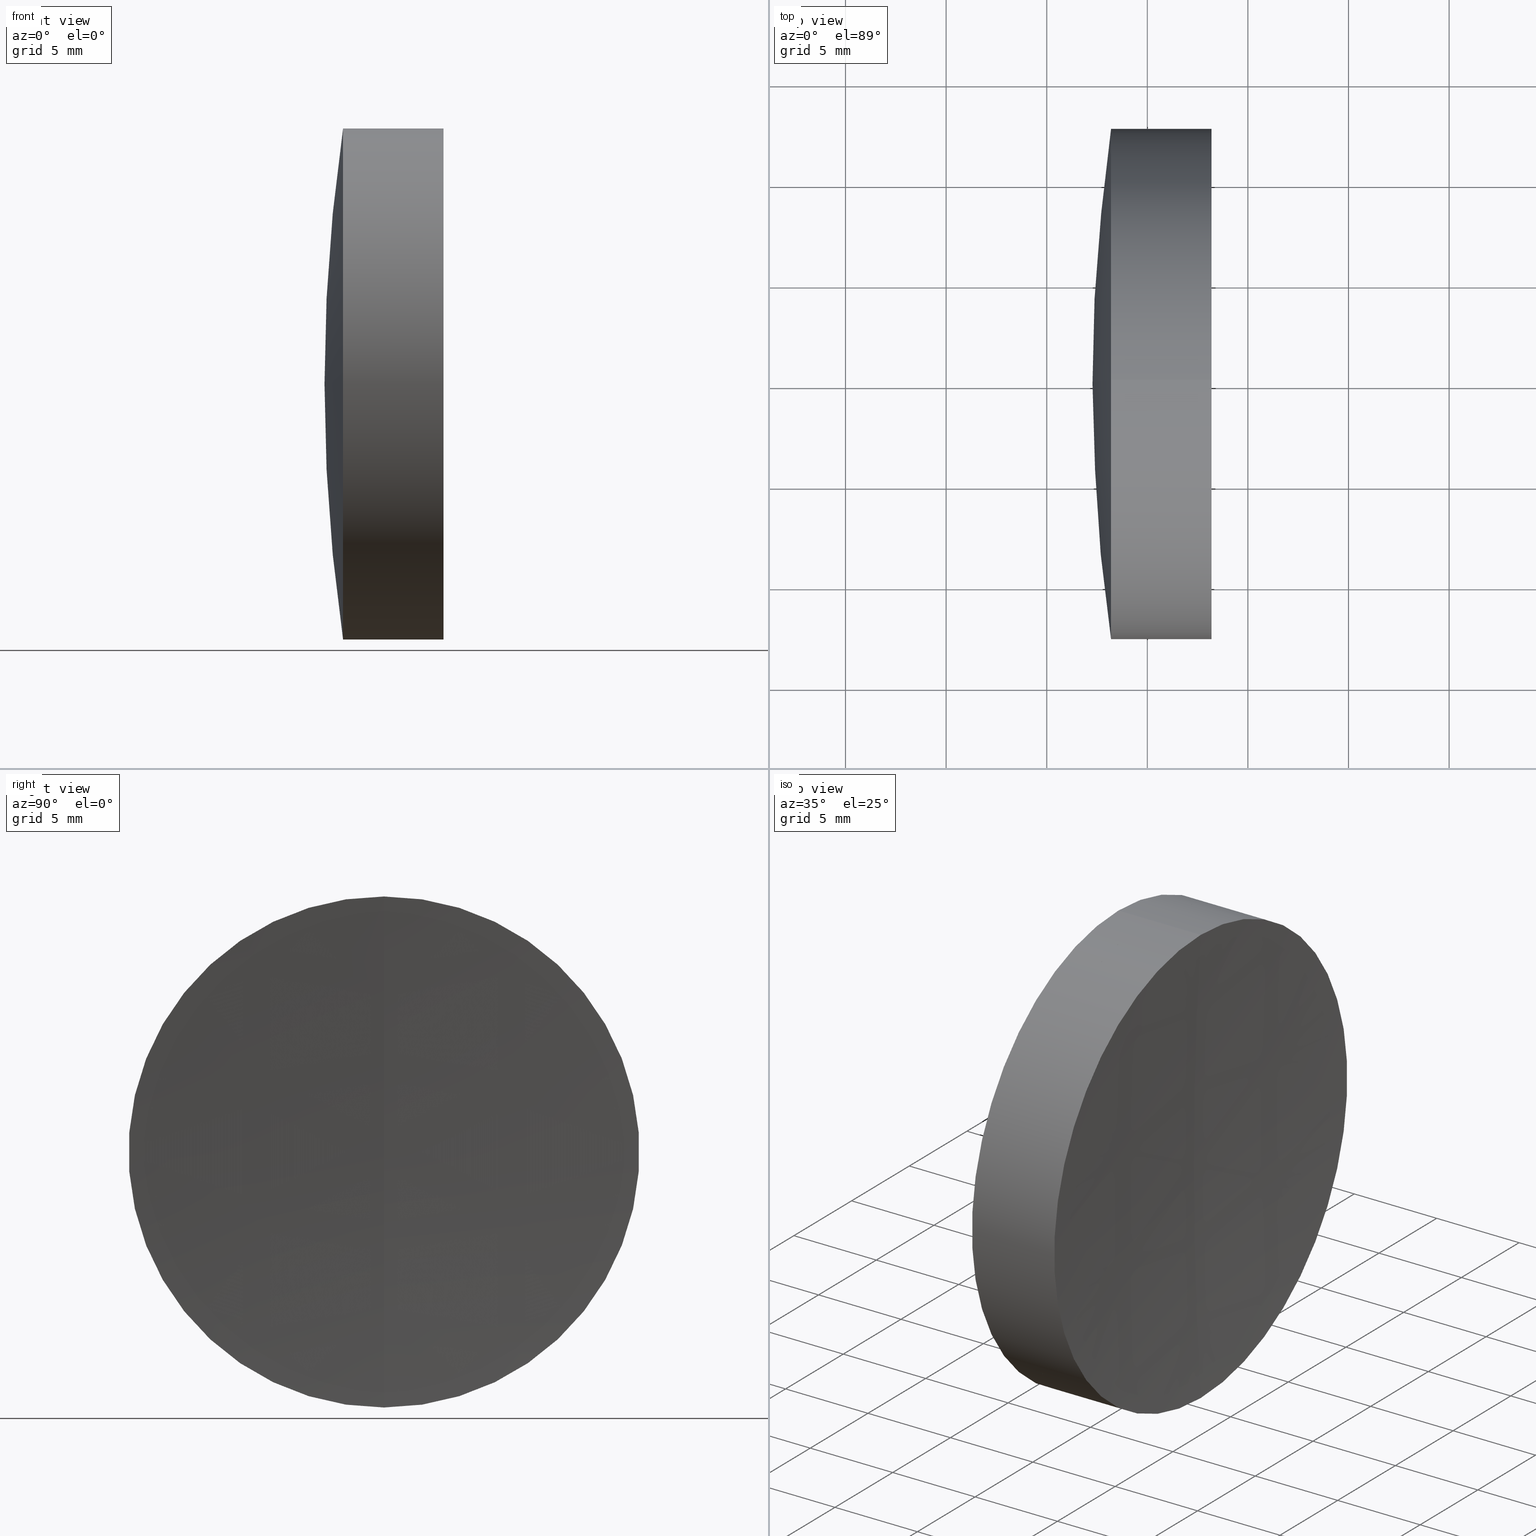
[diagram: canonical four-view strip — front | top / right | iso, engineering-drawing reading convention]
A machine part, canonical four-view strip (front | top / right | iso — engineering-drawing reading convention). The complete STEP part file that produces these views, byte-faithful:
ISO-10303-21;
HEADER;
FILE_DESCRIPTION (( 'STEP AP214' ),
    '1' );
FILE_NAME ('145172.STEP',
    '2019-06-12T01:52:43',
    ( 'user' ),
    ( '΢���й�' ),
    'SwSTEP 2.0',
    'SolidWorks 2016',
    '' );
FILE_SCHEMA (( 'AUTOMOTIVE_DESIGN' ));
ENDSEC;

DATA;
#1 = MECHANICAL_DESIGN_GEOMETRIC_PRESENTATION_REPRESENTATION (  '', ( #105 ), #300 ) ;
#2 = VERTEX_POINT ( 'NONE', #332 ) ;
#3 = DIRECTION ( 'NONE',  ( 0.0000000000000000000, 0.0000000000000000000, 1.000000000000000000 ) ) ;
#4 = VERTEX_POINT ( 'NONE', #94 ) ;
#5 = DIRECTION ( 'NONE',  ( 0.0000000000000000000, 1.000000000000000000, 0.0000000000000000000 ) ) ;
#6 = APPLICATION_CONTEXT ( 'automotive_design' ) ;
#7 = CARTESIAN_POINT ( 'NONE',  ( -0.5519199926577972300, 1.555301434917150900E-015, -12.70000000000010100 ) ) ;
#8 = DIRECTION ( 'NONE',  ( 0.0000000000000000000, 0.0000000000000000000, 1.000000000000000000 ) ) ;
#9 = PRESENTATION_LAYER_ASSIGNMENT (  '', '', ( #282 ) ) ;
#10 = ORIENTED_EDGE ( 'NONE', *, *, #198, .T. ) ;
#11 = UNCERTAINTY_MEASURE_WITH_UNIT (LENGTH_MEASURE( 1.000000000000000100E-005 ), #154, 'distance_accuracy_value', 'NONE');
#12 = ADVANCED_FACE ( 'NONE', ( #193 ), #110, .T. ) ;
#13 = EDGE_LOOP ( 'NONE', ( #24, #138, #259, #236 ) ) ;
#14 = DIRECTION ( 'NONE',  ( -1.000000000000000000, -0.0000000000000000000, -0.0000000000000000000 ) ) ;
#15 =( LENGTH_UNIT ( ) NAMED_UNIT ( * ) SI_UNIT ( .MILLI., .METRE. ) );
#16 = DIRECTION ( 'NONE',  ( -0.0000000000000000000, 1.000000000000000000, 1.224646799147353200E-016 ) ) ;
#17 = EDGE_CURVE ( 'NONE', #218, #347, #48, .T. ) ;
#18 = SURFACE_SIDE_STYLE ('',( #346 ) ) ;
#19 = CARTESIAN_POINT ( 'NONE',  ( 95.07472966492228700, 0.0000000000000000000, 0.0000000000000000000 ) ) ;
#20 = CIRCLE ( 'NONE', #60, 87.90000000000000600 ) ;
#21 = VERTEX_POINT ( 'NONE', #227 ) ;
#22 = FACE_OUTER_BOUND ( 'NONE', #13, .T. ) ;
#23 = SURFACE_SIDE_STYLE ('',( #50 ) ) ;
#24 = ORIENTED_EDGE ( 'NONE', *, *, #198, .F. ) ;
#25 = AXIS2_PLACEMENT_3D ( 'NONE', #182, #16, #207 ) ;
#26 = PRODUCT ( '145172', '145172', '', ( #190 ) ) ;
#27 = FACE_OUTER_BOUND ( 'NONE', #309, .T. ) ;
#28 = ORIENTED_EDGE ( 'NONE', *, *, #108, .F. ) ;
#29 = DIRECTION ( 'NONE',  ( -1.000000000000000000, -0.0000000000000000000, -0.0000000000000000000 ) ) ;
#30 = COLOUR_RGB ( '',1.000000000000000000, 1.000000000000000000, 1.000000000000000000 ) ;
#31 = CARTESIAN_POINT ( 'NONE',  ( -0.8160621761658039000, 0.0000000000000000000, 12.70000000000001700 ) ) ;
#32 =( GEOMETRIC_REPRESENTATION_CONTEXT ( 3 ) GLOBAL_UNCERTAINTY_ASSIGNED_CONTEXT ( ( #11 ) ) GLOBAL_UNIT_ASSIGNED_CONTEXT ( ( #154, #278, #316 ) ) REPRESENTATION_CONTEXT ( 'NONE', 'WORKASPACE' ) );
#33 = FACE_OUTER_BOUND ( 'NONE', #295, .T. ) ;
#34 = DIRECTION ( 'NONE',  ( 0.0000000000000000000, 0.0000000000000000000, -1.000000000000000000 ) ) ;
#35 = CARTESIAN_POINT ( 'NONE',  ( -0.5519199926577972300, 0.0000000000000000000, 12.70000000000010100 ) ) ;
#36 = ADVANCED_FACE ( 'NONE', ( #335 ), #271, .F. ) ;
#37 = COLOUR_RGB ( '',1.000000000000000000, 1.000000000000000000, 1.000000000000000000 ) ;
#38 = ORIENTED_EDGE ( 'NONE', *, *, #329, .T. ) ;
#39 = CARTESIAN_POINT ( 'NONE',  ( 95.07472966492228700, 0.0000000000000000000, 0.0000000000000000000 ) ) ;
#40 = PRESENTATION_LAYER_ASSIGNMENT (  '', '', ( #101 ) ) ;
#41 = DIRECTION ( 'NONE',  ( 0.0000000000000000000, 1.000000000000000000, -0.0000000000000000000 ) ) ;
#42 = FACE_OUTER_BOUND ( 'NONE', #82, .T. ) ;
#43 =( NAMED_UNIT ( * ) SI_UNIT ( $, .STERADIAN. ) SOLID_ANGLE_UNIT ( ) );
#44 = CARTESIAN_POINT ( 'NONE',  ( 93.19768497055619600, 0.0000000000000000000, 0.0000000000000000000 ) ) ;
#45 = DIRECTION ( 'NONE',  ( 0.0000000000000000000, 1.000000000000000000, 0.0000000000000000000 ) ) ;
#46 = AXIS2_PLACEMENT_3D ( 'NONE', #39, #199, #71 ) ;
#47 = SPHERICAL_SURFACE ( 'NONE', #127, 87.90000000000000600 ) ;
#48 = LINE ( 'NONE', #31, #58 ) ;
#49 = DIRECTION ( 'NONE',  ( 0.0000000000000000000, -1.000000000000000000, -1.224646799147353200E-016 ) ) ;
#50 = SURFACE_STYLE_FILL_AREA ( #215 ) ;
#51 = EDGE_LOOP ( 'NONE', ( #103, #200, #240 ) ) ;
#52 =( NAMED_UNIT ( * ) SI_UNIT ( $, .STERADIAN. ) SOLID_ANGLE_UNIT ( ) );
#53 = CIRCLE ( 'NONE', #279, 194.5399999999999900 ) ;
#54 = UNCERTAINTY_MEASURE_WITH_UNIT (LENGTH_MEASURE( 1.000000000000000100E-005 ), #15, 'distance_accuracy_value', 'NONE');
#55 = APPLICATION_CONTEXT ( 'automotive_design' ) ;
#56 = EDGE_CURVE ( 'NONE', #347, #135, #78, .T. ) ;
#57 =( NAMED_UNIT ( * ) PLANE_ANGLE_UNIT ( ) SI_UNIT ( $, .RADIAN. ) );
#58 = VECTOR ( 'NONE', #223, 1000.000000000000000 ) ;
#59 = VERTEX_POINT ( 'NONE', #258 ) ;
#60 = AXIS2_PLACEMENT_3D ( 'NONE', #292, #129, #314 ) ;
#61 = DIRECTION ( 'NONE',  ( 0.0000000000000000000, 0.0000000000000000000, 1.000000000000000000 ) ) ;
#62 =( NAMED_UNIT ( * ) SI_UNIT ( $, .STERADIAN. ) SOLID_ANGLE_UNIT ( ) );
#63 = CIRCLE ( 'NONE', #77, 12.70000000000010100 ) ;
#64 = ORIENTED_EDGE ( 'NONE', *, *, #241, .T. ) ;
#65 = CARTESIAN_POINT ( 'NONE',  ( 292.3153832615549300, 0.0000000000000000000, 0.0000000000000000000 ) ) ;
#66 = CARTESIAN_POINT ( 'NONE',  ( -19.67461673844508900, 0.0000000000000000000, -4.590090452819805700E-014 ) ) ;
#67 = ADVANCED_FACE ( 'NONE', ( #239 ), #132, .T. ) ;
#68 = AXIS2_PLACEMENT_3D ( 'NONE', #283, #116, #284 ) ;
#69 = ORIENTED_EDGE ( 'NONE', *, *, #108, .T. ) ;
#70 = CARTESIAN_POINT ( 'NONE',  ( -19.67461673844508900, 0.0000000000000000000, -4.590090452819805700E-014 ) ) ;
#71 = DIRECTION ( 'NONE',  ( 0.0000000000000000000, 0.0000000000000000000, 1.000000000000000000 ) ) ;
#72 = ORIENTED_EDGE ( 'NONE', *, *, #161, .F. ) ;
#73 = AXIS2_PLACEMENT_3D ( 'NONE', #115, #79, #155 ) ;
#74 = DIRECTION ( 'NONE',  ( 0.0000000000000000000, 0.0000000000000000000, 1.000000000000000000 ) ) ;
#75 = VERTEX_POINT ( 'NONE', #224 ) ;
#76 = APPLICATION_PROTOCOL_DEFINITION ( 'draft international standard', 'automotive_design', 1998, #6 ) ;
#77 = AXIS2_PLACEMENT_3D ( 'NONE', #177, #14, #204 ) ;
#78 = CIRCLE ( 'NONE', #265, 12.70000000000001700 ) ;
#79 = DIRECTION ( 'NONE',  ( 0.0000000000000000000, -1.000000000000000000, 0.0000000000000000000 ) ) ;
#80 = LINE ( 'NONE', #7, #158 ) ;
#81 = AXIS2_PLACEMENT_3D ( 'NONE', #289, #124, #310 ) ;
#82 = EDGE_LOOP ( 'NONE', ( #133, #280, #244 ) ) ;
#83 = PRESENTATION_STYLE_ASSIGNMENT (( #162 ) ) ;
#84 = EDGE_LOOP ( 'NONE', ( #152, #220, #187 ) ) ;
#85 = DIRECTION ( 'NONE',  ( -1.000000000000000000, -0.0000000000000000000, -0.0000000000000000000 ) ) ;
#86 = DIRECTION ( 'NONE',  ( 0.0000000000000000000, 0.0000000000000000000, 1.000000000000000000 ) ) ;
#87 = PRESENTATION_STYLE_ASSIGNMENT (( #112 ) ) ;
#88 = AXIS2_PLACEMENT_3D ( 'NONE', #157, #324, #191 ) ;
#89 = CARTESIAN_POINT ( 'NONE',  ( 98.19036787198696500, -1.555301434917148100E-015, 12.70000000000007900 ) ) ;
#90 = DIRECTION ( 'NONE',  ( -1.000000000000000000, -0.0000000000000000000, -0.0000000000000000000 ) ) ;
#91 = SPHERICAL_SURFACE ( 'NONE', #216, 194.5399999999999900 ) ;
#92 = DIRECTION ( 'NONE',  ( 0.0000000000000000000, -1.224646799147353200E-016, 1.000000000000000000 ) ) ;
#93 = EDGE_CURVE ( 'NONE', #296, #59, #119, .T. ) ;
#94 = CARTESIAN_POINT ( 'NONE',  ( 95.07472966492230200, 0.0000000000000000000, 12.70000000000002100 ) ) ;
#95 = ORIENTED_EDGE ( 'NONE', *, *, #333, .F. ) ;
#96 = CARTESIAN_POINT ( 'NONE',  ( -19.67461673844508900, 0.0000000000000000000, -4.590090452819805700E-014 ) ) ;
#97 = ORIENTED_EDGE ( 'NONE', *, *, #161, .T. ) ;
#98 = AXIS2_PLACEMENT_3D ( 'NONE', #66, #255, #92 ) ;
#99 = PRODUCT_DEFINITION_SHAPE ( 'NONE', 'NONE',  #179 ) ;
#100 = ADVANCED_BREP_SHAPE_REPRESENTATION ( '145172', ( #293, #210, #88 ), #111 ) ;
#101 = STYLED_ITEM ( 'NONE', ( #83 ), #293 ) ;
#102 = SURFACE_STYLE_FILL_AREA ( #146 ) ;
#103 = ORIENTED_EDGE ( 'NONE', *, *, #231, .T. ) ;
#104 =( LENGTH_UNIT ( ) NAMED_UNIT ( * ) SI_UNIT ( .MILLI., .METRE. ) );
#105 = STYLED_ITEM ( 'NONE', ( #144 ), #210 ) ;
#106 = CYLINDRICAL_SURFACE ( 'NONE', #134, 12.70000000000001700 ) ;
#107 = APPLICATION_PROTOCOL_DEFINITION ( 'draft international standard', 'automotive_design', 1998, #55 ) ;
#108 = EDGE_CURVE ( 'NONE', #2, #197, #80, .T. ) ;
#109 = CYLINDRICAL_SURFACE ( 'NONE', #222, 12.70000000000010100 ) ;
#110 = SPHERICAL_SURFACE ( 'NONE', #294, 87.90000000000000600 ) ;
#111 =( GEOMETRIC_REPRESENTATION_CONTEXT ( 3 ) GLOBAL_UNCERTAINTY_ASSIGNED_CONTEXT ( ( #173 ) ) GLOBAL_UNIT_ASSIGNED_CONTEXT ( ( #211, #136, #52 ) ) REPRESENTATION_CONTEXT ( 'NONE', 'WORKASPACE' ) );
#112 = SURFACE_STYLE_USAGE ( .BOTH. , #23 ) ;
#113 = DIRECTION ( 'NONE',  ( -1.000000000000000000, -0.0000000000000000000, -0.0000000000000000000 ) ) ;
#114 = CIRCLE ( 'NONE', #81, 12.70000000000010100 ) ;
#115 = CARTESIAN_POINT ( 'NONE',  ( -19.67461673844508900, 0.0000000000000000000, -4.590090452819805700E-014 ) ) ;
#116 = DIRECTION ( 'NONE',  ( 0.0000000000000000000, -1.000000000000000000, -1.224646799147353200E-016 ) ) ;
#117 = CIRCLE ( 'NONE', #272, 12.70000000000001900 ) ;
#118 = AXIS2_PLACEMENT_3D ( 'NONE', #149, #341, #181 ) ;
#119 = CIRCLE ( 'NONE', #98, 115.4500000000000200 ) ;
#120 = ADVANCED_FACE ( 'NONE', ( #42 ), #91, .F. ) ;
#121 = DIRECTION ( 'NONE',  ( 0.0000000000000000000, 0.0000000000000000000, -1.000000000000000000 ) ) ;
#122 = SHAPE_DEFINITION_REPRESENTATION ( #99, #100 ) ;
#123 = ORIENTED_EDGE ( 'NONE', *, *, #184, .T. ) ;
#124 = DIRECTION ( 'NONE',  ( -1.000000000000000000, -0.0000000000000000000, -0.0000000000000000000 ) ) ;
#125 = COLOUR_RGB ( '',1.000000000000000000, 1.000000000000000000, 1.000000000000000000 ) ;
#126 = FACE_OUTER_BOUND ( 'NONE', #160, .T. ) ;
#127 = AXIS2_PLACEMENT_3D ( 'NONE', #183, #343, #242 ) ;
#128 = ORIENTED_EDGE ( 'NONE', *, *, #225, .F. ) ;
#129 = DIRECTION ( 'NONE',  ( 0.0000000000000000000, 1.000000000000000000, -0.0000000000000000000 ) ) ;
#130 = UNCERTAINTY_MEASURE_WITH_UNIT (LENGTH_MEASURE( 1.000000000000000100E-005 ), #104, 'distance_accuracy_value', 'NONE');
#131 = EDGE_CURVE ( 'NONE', #174, #4, #317, .T. ) ;
#132 = SPHERICAL_SURFACE ( 'NONE', #166, 115.4500000000000200 ) ;
#133 = ORIENTED_EDGE ( 'NONE', *, *, #322, .F. ) ;
#134 = AXIS2_PLACEMENT_3D ( 'NONE', #305, #168, #139 ) ;
#135 = VERTEX_POINT ( 'NONE', #307 ) ;
#136 =( NAMED_UNIT ( * ) PLANE_ANGLE_UNIT ( ) SI_UNIT ( $, .RADIAN. ) );
#137 = FACE_OUTER_BOUND ( 'NONE', #176, .T. ) ;
#138 = ORIENTED_EDGE ( 'NONE', *, *, #269, .T. ) ;
#139 = DIRECTION ( 'NONE',  ( 0.0000000000000000000, 0.0000000000000000000, 1.000000000000000000 ) ) ;
#140 = AXIS2_PLACEMENT_3D ( 'NONE', #213, #328, #345 ) ;
#141 = CARTESIAN_POINT ( 'NONE',  ( -0.5519199926577972300, 0.0000000000000000000, 0.0000000000000000000 ) ) ;
#142 = CLOSED_SHELL ( 'NONE', ( #260, #196, #287, #12, #170, #67 ) ) ;
#143 = ADVANCED_FACE ( 'NONE', ( #323 ), #299, .T. ) ;
#144 = PRESENTATION_STYLE_ASSIGNMENT (( #178 ) ) ;
#145 = ORIENTED_EDGE ( 'NONE', *, *, #93, .F. ) ;
#146 = FILL_AREA_STYLE ('',( #312 ) ) ;
#147 = CIRCLE ( 'NONE', #73, 115.4500000000000200 ) ;
#148 = ORIENTED_EDGE ( 'NONE', *, *, #217, .F. ) ;
#149 = CARTESIAN_POINT ( 'NONE',  ( 95.07472966492230200, 0.0000000000000000000, 0.0000000000000000000 ) ) ;
#150 = VECTOR ( 'NONE', #90, 1000.000000000000000 ) ;
#151 = CARTESIAN_POINT ( 'NONE',  ( -0.5519199926577972300, 0.0000000000000000000, 0.0000000000000000000 ) ) ;
#152 = ORIENTED_EDGE ( 'NONE', *, *, #245, .F. ) ;
#153 = CLOSED_SHELL ( 'NONE', ( #254, #306, #171, #36, #120, #143 ) ) ;
#154 =( LENGTH_UNIT ( ) NAMED_UNIT ( * ) SI_UNIT ( .MILLI., .METRE. ) );
#155 = DIRECTION ( 'NONE',  ( 0.0000000000000000000, 0.0000000000000000000, -1.000000000000000000 ) ) ;
#156 = ORIENTED_EDGE ( 'NONE', *, *, #322, .T. ) ;
#157 = CARTESIAN_POINT ( 'NONE',  ( 0.0000000000000000000, 0.0000000000000000000, 0.0000000000000000000 ) ) ;
#158 = VECTOR ( 'NONE', #29, 1000.000000000000000 ) ;
#159 = DIRECTION ( 'NONE',  ( 0.0000000000000000000, 1.224646799147353200E-016, -1.000000000000000000 ) ) ;
#160 = EDGE_LOOP ( 'NONE', ( #327, #298, #246 ) ) ;
#161 = EDGE_CURVE ( 'NONE', #174, #2, #251, .T. ) ;
#162 = SURFACE_STYLE_USAGE ( .BOTH. , #18 ) ;
#163 = VECTOR ( 'NONE', #291, 1000.000000000000000 ) ;
#164 = ORIENTED_EDGE ( 'NONE', *, *, #56, .T. ) ;
#165 = EDGE_CURVE ( 'NONE', #347, #263, #313, .T. ) ;
#166 = AXIS2_PLACEMENT_3D ( 'NONE', #303, #281, #219 ) ;
#167 = CIRCLE ( 'NONE', #195, 194.5399999999999900 ) ;
#168 = DIRECTION ( 'NONE',  ( -1.000000000000000000, -0.0000000000000000000, -0.0000000000000000000 ) ) ;
#169 = ORIENTED_EDGE ( 'NONE', *, *, #17, .F. ) ;
#170 = ADVANCED_FACE ( 'NONE', ( #22 ), #106, .T. ) ;
#171 = ADVANCED_FACE ( 'NONE', ( #27 ), #180, .F. ) ;
#172 = CIRCLE ( 'NONE', #256, 12.70000000000001700 ) ;
#173 = UNCERTAINTY_MEASURE_WITH_UNIT (LENGTH_MEASURE( 1.000000000000000100E-005 ), #211, 'distance_accuracy_value', 'NONE');
#174 = VERTEX_POINT ( 'NONE', #89 ) ;
#175 = DIRECTION ( 'NONE',  ( 0.0000000000000000000, 0.0000000000000000000, 1.000000000000000000 ) ) ;
#176 = EDGE_LOOP ( 'NONE', ( #72, #156, #148 ) ) ;
#177 = CARTESIAN_POINT ( 'NONE',  ( 98.19036787198697900, 0.0000000000000000000, 0.0000000000000000000 ) ) ;
#178 = SURFACE_STYLE_USAGE ( .BOTH. , #340 ) ;
#179 = PRODUCT_DEFINITION ( 'δ֪', '', #252, #257 ) ;
#180 = SPHERICAL_SURFACE ( 'NONE', #336, 115.4500000000000300 ) ;
#181 = DIRECTION ( 'NONE',  ( 0.0000000000000000000, 0.0000000000000000000, 1.000000000000000000 ) ) ;
#182 = CARTESIAN_POINT ( 'NONE',  ( -19.67461673844508900, 0.0000000000000000000, -4.590090452819805700E-014 ) ) ;
#183 = CARTESIAN_POINT ( 'NONE',  ( 180.1753832615549100, 0.0000000000000000000, 6.432216733435462300E-014 ) ) ;
#184 = EDGE_CURVE ( 'NONE', #218, #59, #275, .T. ) ;
#185 = DIRECTION ( 'NONE',  ( 0.0000000000000000000, 0.0000000000000000000, -1.000000000000000000 ) ) ;
#186 = FACE_OUTER_BOUND ( 'NONE', #337, .T. ) ;
#187 = ORIENTED_EDGE ( 'NONE', *, *, #225, .T. ) ;
#188 = EDGE_CURVE ( 'NONE', #197, #4, #114, .T. ) ;
#189 = AXIS2_PLACEMENT_3D ( 'NONE', #249, #113, #86 ) ;
#190 = PRODUCT_CONTEXT ( 'NONE', #55, 'mechanical' ) ;
#191 = DIRECTION ( 'NONE',  ( 1.000000000000000000, 0.0000000000000000000, 0.0000000000000000000 ) ) ;
#192 = EDGE_CURVE ( 'NONE', #2, #174, #63, .T. ) ;
#193 = FACE_OUTER_BOUND ( 'NONE', #247, .T. ) ;
#194 = CIRCLE ( 'NONE', #118, 12.70000000000010100 ) ;
#195 = AXIS2_PLACEMENT_3D ( 'NONE', #237, #49, #159 ) ;
#196 = ADVANCED_FACE ( 'NONE', ( #33 ), #203, .T. ) ;
#197 = VERTEX_POINT ( 'NONE', #230 ) ;
#198 = EDGE_CURVE ( 'NONE', #59, #135, #266, .T. ) ;
#199 = DIRECTION ( 'NONE',  ( -1.000000000000000000, -0.0000000000000000000, -0.0000000000000000000 ) ) ;
#200 = ORIENTED_EDGE ( 'NONE', *, *, #165, .T. ) ;
#201 = FILL_AREA_STYLE_COLOUR ( '', #30 ) ;
#202 = CARTESIAN_POINT ( 'NONE',  ( 292.3153832615549300, 0.0000000000000000000, 0.0000000000000000000 ) ) ;
#203 = CYLINDRICAL_SURFACE ( 'NONE', #319, 12.70000000000001700 ) ;
#204 = DIRECTION ( 'NONE',  ( 0.0000000000000000000, 0.0000000000000000000, 1.000000000000000000 ) ) ;
#205 =( NAMED_UNIT ( * ) PLANE_ANGLE_UNIT ( ) SI_UNIT ( $, .RADIAN. ) );
#206 = DIRECTION ( 'NONE',  ( 0.0000000000000000000, 0.0000000000000000000, 1.000000000000000000 ) ) ;
#207 = DIRECTION ( 'NONE',  ( 0.0000000000000000000, -1.224646799147353200E-016, 1.000000000000000000 ) ) ;
#208 = DIRECTION ( 'NONE',  ( -1.000000000000000000, -0.0000000000000000000, -0.0000000000000000000 ) ) ;
#209 = ORIENTED_EDGE ( 'NONE', *, *, #188, .T. ) ;
#210 = MANIFOLD_SOLID_BREP ( '��ת2', #153 ) ;
#211 =( LENGTH_UNIT ( ) NAMED_UNIT ( * ) SI_UNIT ( .MILLI., .METRE. ) );
#212 = ORIENTED_EDGE ( 'NONE', *, *, #188, .F. ) ;
#213 = CARTESIAN_POINT ( 'NONE',  ( 292.3153832615549300, 0.0000000000000000000, 0.0000000000000000000 ) ) ;
#214 = MECHANICAL_DESIGN_GEOMETRIC_PRESENTATION_REPRESENTATION (  '', ( #282 ), #32 ) ;
#215 = FILL_AREA_STYLE ('',( #201 ) ) ;
#216 = AXIS2_PLACEMENT_3D ( 'NONE', #65, #250, #34 ) ;
#217 = EDGE_CURVE ( 'NONE', #2, #21, #53, .T. ) ;
#218 = VERTEX_POINT ( 'NONE', #267 ) ;
#219 = DIRECTION ( 'NONE',  ( 0.0000000000000000000, 0.0000000000000000000, 1.000000000000000000 ) ) ;
#220 = ORIENTED_EDGE ( 'NONE', *, *, #333, .T. ) ;
#221 = CIRCLE ( 'NONE', #25, 115.4500000000000300 ) ;
#222 = AXIS2_PLACEMENT_3D ( 'NONE', #151, #268, #342 ) ;
#223 = DIRECTION ( 'NONE',  ( -1.000000000000000000, -0.0000000000000000000, -0.0000000000000000000 ) ) ;
#224 = CARTESIAN_POINT ( 'NONE',  ( 95.77538326155493600, 0.0000000000000000000, -3.883163088011996400E-014 ) ) ;
#225 = EDGE_CURVE ( 'NONE', #4, #197, #194, .T. ) ;
#226 = DIRECTION ( 'NONE',  ( -1.000000000000000000, -0.0000000000000000000, -0.0000000000000000000 ) ) ;
#227 = CARTESIAN_POINT ( 'NONE',  ( 97.77538326155493600, 0.0000000000000000000, -1.191213941530630400E-014 ) ) ;
#228 = ORIENTED_EDGE ( 'NONE', *, *, #245, .T. ) ;
#229 = DIRECTION ( 'NONE',  ( 0.0000000000000000000, 0.0000000000000000000, 1.000000000000000000 ) ) ;
#230 = CARTESIAN_POINT ( 'NONE',  ( 95.07472966492230200, 1.555301434917141200E-015, -12.70000000000006500 ) ) ;
#231 = EDGE_CURVE ( 'NONE', #135, #347, #172, .T. ) ;
#232 = MECHANICAL_DESIGN_GEOMETRIC_PRESENTATION_REPRESENTATION (  '', ( #101 ), #297 ) ;
#233 = DIRECTION ( 'NONE',  ( -1.000000000000000000, -0.0000000000000000000, -0.0000000000000000000 ) ) ;
#234 = CARTESIAN_POINT ( 'NONE',  ( 92.27538326155490700, 0.0000000000000000000, 5.893984465210199900E-014 ) ) ;
#235 = AXIS2_PLACEMENT_3D ( 'NONE', #141, #253, #286 ) ;
#236 = ORIENTED_EDGE ( 'NONE', *, *, #231, .F. ) ;
#237 = CARTESIAN_POINT ( 'NONE',  ( 292.3153832615549300, 0.0000000000000000000, 0.0000000000000000000 ) ) ;
#238 = FILL_AREA_STYLE_COLOUR ( '', #37 ) ;
#239 = FACE_OUTER_BOUND ( 'NONE', #285, .T. ) ;
#240 = ORIENTED_EDGE ( 'NONE', *, *, #241, .F. ) ;
#241 = EDGE_CURVE ( 'NONE', #135, #263, #20, .T. ) ;
#242 = DIRECTION ( 'NONE',  ( 0.0000000000000000000, 0.0000000000000000000, -1.000000000000000000 ) ) ;
#243 = PRODUCT_RELATED_PRODUCT_CATEGORY ( 'part', '', ( #26 ) ) ;
#244 = ORIENTED_EDGE ( 'NONE', *, *, #217, .T. ) ;
#245 = EDGE_CURVE ( 'NONE', #75, #197, #221, .T. ) ;
#246 = ORIENTED_EDGE ( 'NONE', *, *, #184, .F. ) ;
#247 = EDGE_LOOP ( 'NONE', ( #290, #164, #64 ) ) ;
#248 = CARTESIAN_POINT ( 'NONE',  ( 93.19768497055619600, 0.0000000000000000000, 0.0000000000000000000 ) ) ;
#249 = CARTESIAN_POINT ( 'NONE',  ( 98.19036787198697900, 0.0000000000000000000, 0.0000000000000000000 ) ) ;
#250 = DIRECTION ( 'NONE',  ( -0.0000000000000000000, -1.000000000000000000, -0.0000000000000000000 ) ) ;
#251 = CIRCLE ( 'NONE', #189, 12.70000000000010100 ) ;
#252 = PRODUCT_DEFINITION_FORMATION_WITH_SPECIFIED_SOURCE ( '�κ�', '', #26, .NOT_KNOWN. ) ;
#253 = DIRECTION ( 'NONE',  ( -1.000000000000000000, -0.0000000000000000000, -0.0000000000000000000 ) ) ;
#254 = ADVANCED_FACE ( 'NONE', ( #186 ), #109, .T. ) ;
#255 = DIRECTION ( 'NONE',  ( -0.0000000000000000000, 1.000000000000000000, 1.224646799147353200E-016 ) ) ;
#256 = AXIS2_PLACEMENT_3D ( 'NONE', #44, #233, #74 ) ;
#257 = PRODUCT_DEFINITION_CONTEXT ( 'detailed design', #6, 'design' ) ;
#258 = CARTESIAN_POINT ( 'NONE',  ( 95.07472966492228700, 1.555301434917141000E-015, -12.70000000000002100 ) ) ;
#259 = ORIENTED_EDGE ( 'NONE', *, *, #17, .T. ) ;
#260 = ADVANCED_FACE ( 'NONE', ( #126 ), #274, .T. ) ;
#261 = CARTESIAN_POINT ( 'NONE',  ( 180.1753832615549100, 0.0000000000000000000, 6.432216733435462300E-014 ) ) ;
#262 = CIRCLE ( 'NONE', #331, 115.4500000000000300 ) ;
#263 = VERTEX_POINT ( 'NONE', #234 ) ;
#264 = CARTESIAN_POINT ( 'NONE',  ( -0.8160621761658039000, 1.555301434917140600E-015, -12.70000000000001700 ) ) ;
#265 = AXIS2_PLACEMENT_3D ( 'NONE', #248, #85, #61 ) ;
#266 = LINE ( 'NONE', #264, #163 ) ;
#267 = CARTESIAN_POINT ( 'NONE',  ( 95.07472966492228700, 0.0000000000000000000, 12.70000000000001900 ) ) ;
#268 = DIRECTION ( 'NONE',  ( -1.000000000000000000, -0.0000000000000000000, -0.0000000000000000000 ) ) ;
#269 = EDGE_CURVE ( 'NONE', #59, #218, #117, .T. ) ;
#270 = CARTESIAN_POINT ( 'NONE',  ( -19.67461673844508900, 0.0000000000000000000, -4.590090452819805700E-014 ) ) ;
#271 = SPHERICAL_SURFACE ( 'NONE', #326, 115.4500000000000300 ) ;
#272 = AXIS2_PLACEMENT_3D ( 'NONE', #19, #208, #3 ) ;
#273 = ORIENTED_EDGE ( 'NONE', *, *, #192, .T. ) ;
#274 = SPHERICAL_SURFACE ( 'NONE', #308, 115.4500000000000200 ) ;
#275 = CIRCLE ( 'NONE', #46, 12.70000000000001900 ) ;
#276 = PRESENTATION_LAYER_ASSIGNMENT (  '', '', ( #105 ) ) ;
#277 = ORIENTED_EDGE ( 'NONE', *, *, #131, .F. ) ;
#278 =( NAMED_UNIT ( * ) PLANE_ANGLE_UNIT ( ) SI_UNIT ( $, .RADIAN. ) );
#279 = AXIS2_PLACEMENT_3D ( 'NONE', #202, #41, #229 ) ;
#280 = ORIENTED_EDGE ( 'NONE', *, *, #192, .F. ) ;
#281 = DIRECTION ( 'NONE',  ( 0.0000000000000000000, 1.000000000000000000, 0.0000000000000000000 ) ) ;
#282 = STYLED_ITEM ( 'NONE', ( #87 ), #100 ) ;
#283 = CARTESIAN_POINT ( 'NONE',  ( 180.1753832615549100, 0.0000000000000000000, 6.432216733435462300E-014 ) ) ;
#284 = DIRECTION ( 'NONE',  ( 0.0000000000000000000, 1.224646799147353200E-016, -1.000000000000000000 ) ) ;
#285 = EDGE_LOOP ( 'NONE', ( #145, #38, #311 ) ) ;
#286 = DIRECTION ( 'NONE',  ( 0.0000000000000000000, 0.0000000000000000000, 1.000000000000000000 ) ) ;
#287 = ADVANCED_FACE ( 'NONE', ( #301 ), #47, .T. ) ;
#288 = ORIENTED_EDGE ( 'NONE', *, *, #56, .F. ) ;
#289 = CARTESIAN_POINT ( 'NONE',  ( 95.07472966492230200, 0.0000000000000000000, 0.0000000000000000000 ) ) ;
#290 = ORIENTED_EDGE ( 'NONE', *, *, #165, .F. ) ;
#291 = DIRECTION ( 'NONE',  ( -1.000000000000000000, -0.0000000000000000000, -0.0000000000000000000 ) ) ;
#292 = CARTESIAN_POINT ( 'NONE',  ( 180.1753832615549100, 0.0000000000000000000, 6.432216733435462300E-014 ) ) ;
#293 = MANIFOLD_SOLID_BREP ( '��ת1', #142 ) ;
#294 = AXIS2_PLACEMENT_3D ( 'NONE', #261, #334, #121 ) ;
#295 = EDGE_LOOP ( 'NONE', ( #123, #10, #288, #169 ) ) ;
#296 = VERTEX_POINT ( 'NONE', #321 ) ;
#297 =( GEOMETRIC_REPRESENTATION_CONTEXT ( 3 ) GLOBAL_UNCERTAINTY_ASSIGNED_CONTEXT ( ( #130 ) ) GLOBAL_UNIT_ASSIGNED_CONTEXT ( ( #104, #57, #62 ) ) REPRESENTATION_CONTEXT ( 'NONE', 'WORKASPACE' ) );
#298 = ORIENTED_EDGE ( 'NONE', *, *, #93, .T. ) ;
#299 = CYLINDRICAL_SURFACE ( 'NONE', #235, 12.70000000000010100 ) ;
#300 =( GEOMETRIC_REPRESENTATION_CONTEXT ( 3 ) GLOBAL_UNCERTAINTY_ASSIGNED_CONTEXT ( ( #54 ) ) GLOBAL_UNIT_ASSIGNED_CONTEXT ( ( #15, #205, #43 ) ) REPRESENTATION_CONTEXT ( 'NONE', 'WORKASPACE' ) );
#301 = FACE_OUTER_BOUND ( 'NONE', #51, .T. ) ;
#302 = EDGE_LOOP ( 'NONE', ( #28, #273, #318, #212 ) ) ;
#303 = CARTESIAN_POINT ( 'NONE',  ( -19.67461673844508900, 0.0000000000000000000, -4.590090452819805700E-014 ) ) ;
#304 = DIRECTION ( 'NONE',  ( 0.0000000000000000000, 1.000000000000000000, 0.0000000000000000000 ) ) ;
#305 = CARTESIAN_POINT ( 'NONE',  ( -0.8160621761658039000, 0.0000000000000000000, 0.0000000000000000000 ) ) ;
#306 = ADVANCED_FACE ( 'NONE', ( #137 ), #339, .F. ) ;
#307 = CARTESIAN_POINT ( 'NONE',  ( 93.19768497055619600, 0.0000000000000000000, -12.69999999999996900 ) ) ;
#308 = AXIS2_PLACEMENT_3D ( 'NONE', #270, #45, #206 ) ;
#309 = EDGE_LOOP ( 'NONE', ( #95, #228, #209 ) ) ;
#310 = DIRECTION ( 'NONE',  ( 0.0000000000000000000, 0.0000000000000000000, 1.000000000000000000 ) ) ;
#311 = ORIENTED_EDGE ( 'NONE', *, *, #269, .F. ) ;
#312 = FILL_AREA_STYLE_COLOUR ( '', #125 ) ;
#313 = CIRCLE ( 'NONE', #68, 87.90000000000000600 ) ;
#314 = DIRECTION ( 'NONE',  ( 0.0000000000000000000, 0.0000000000000000000, 1.000000000000000000 ) ) ;
#315 = FILL_AREA_STYLE ('',( #238 ) ) ;
#316 =( NAMED_UNIT ( * ) SI_UNIT ( $, .STERADIAN. ) SOLID_ANGLE_UNIT ( ) );
#317 = LINE ( 'NONE', #35, #150 ) ;
#318 = ORIENTED_EDGE ( 'NONE', *, *, #131, .T. ) ;
#319 = AXIS2_PLACEMENT_3D ( 'NONE', #338, #226, #175 ) ;
#320 = DIRECTION ( 'NONE',  ( 0.0000000000000000000, -1.000000000000000000, 0.0000000000000000000 ) ) ;
#321 = CARTESIAN_POINT ( 'NONE',  ( 95.77538326155492100, 0.0000000000000000000, -3.883163088011996400E-014 ) ) ;
#322 = EDGE_CURVE ( 'NONE', #174, #21, #167, .T. ) ;
#323 = FACE_OUTER_BOUND ( 'NONE', #302, .T. ) ;
#324 = DIRECTION ( 'NONE',  ( 0.0000000000000000000, 0.0000000000000000000, 1.000000000000000000 ) ) ;
#325 = CARTESIAN_POINT ( 'NONE',  ( -19.67461673844508900, 0.0000000000000000000, -4.590090452819805700E-014 ) ) ;
#326 = AXIS2_PLACEMENT_3D ( 'NONE', #96, #5, #330 ) ;
#327 = ORIENTED_EDGE ( 'NONE', *, *, #329, .F. ) ;
#328 = DIRECTION ( 'NONE',  ( -0.0000000000000000000, -1.000000000000000000, -0.0000000000000000000 ) ) ;
#329 = EDGE_CURVE ( 'NONE', #296, #218, #147, .T. ) ;
#330 = DIRECTION ( 'NONE',  ( 0.0000000000000000000, 0.0000000000000000000, 1.000000000000000000 ) ) ;
#331 = AXIS2_PLACEMENT_3D ( 'NONE', #325, #320, #185 ) ;
#332 = CARTESIAN_POINT ( 'NONE',  ( 98.19036787198696500, 0.0000000000000000000, -12.70000000000007900 ) ) ;
#333 = EDGE_CURVE ( 'NONE', #75, #4, #262, .T. ) ;
#334 = DIRECTION ( 'NONE',  ( -0.0000000000000000000, -1.000000000000000000, -0.0000000000000000000 ) ) ;
#335 = FACE_OUTER_BOUND ( 'NONE', #84, .T. ) ;
#336 = AXIS2_PLACEMENT_3D ( 'NONE', #70, #304, #8 ) ;
#337 = EDGE_LOOP ( 'NONE', ( #97, #69, #128, #277 ) ) ;
#338 = CARTESIAN_POINT ( 'NONE',  ( -0.8160621761658039000, 0.0000000000000000000, 0.0000000000000000000 ) ) ;
#339 = SPHERICAL_SURFACE ( 'NONE', #140, 194.5399999999999900 ) ;
#340 = SURFACE_SIDE_STYLE ('',( #102 ) ) ;
#341 = DIRECTION ( 'NONE',  ( -1.000000000000000000, -0.0000000000000000000, -0.0000000000000000000 ) ) ;
#342 = DIRECTION ( 'NONE',  ( 0.0000000000000000000, 0.0000000000000000000, 1.000000000000000000 ) ) ;
#343 = DIRECTION ( 'NONE',  ( -0.0000000000000000000, -1.000000000000000000, -0.0000000000000000000 ) ) ;
#344 = CARTESIAN_POINT ( 'NONE',  ( 93.19768497055619600, -1.555301434917134900E-015, 12.70000000000003500 ) ) ;
#345 = DIRECTION ( 'NONE',  ( 0.0000000000000000000, 0.0000000000000000000, -1.000000000000000000 ) ) ;
#346 = SURFACE_STYLE_FILL_AREA ( #315 ) ;
#347 = VERTEX_POINT ( 'NONE', #344 ) ;
ENDSEC;
END-ISO-10303-21;
